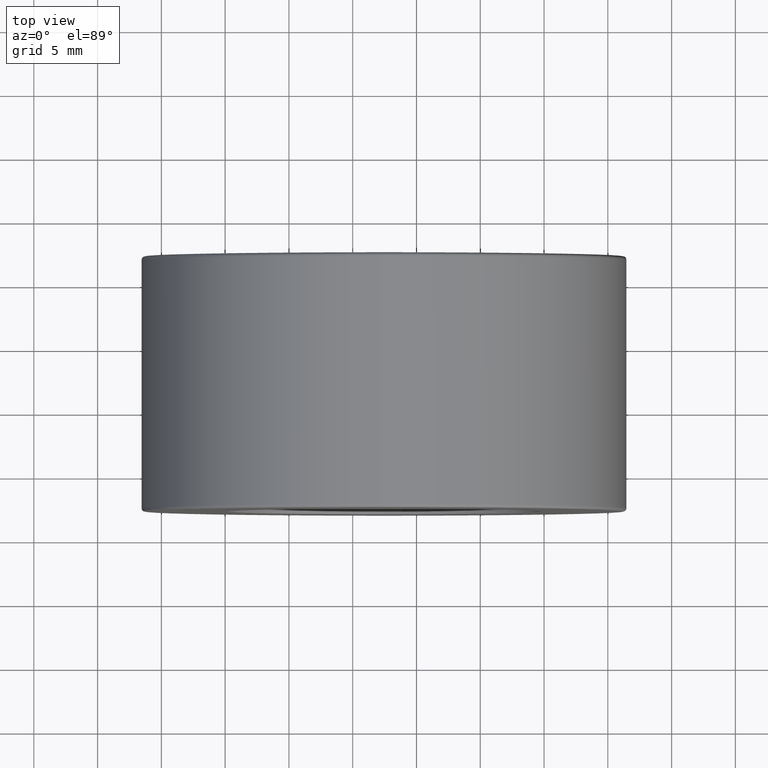
[diagram: clean part render]
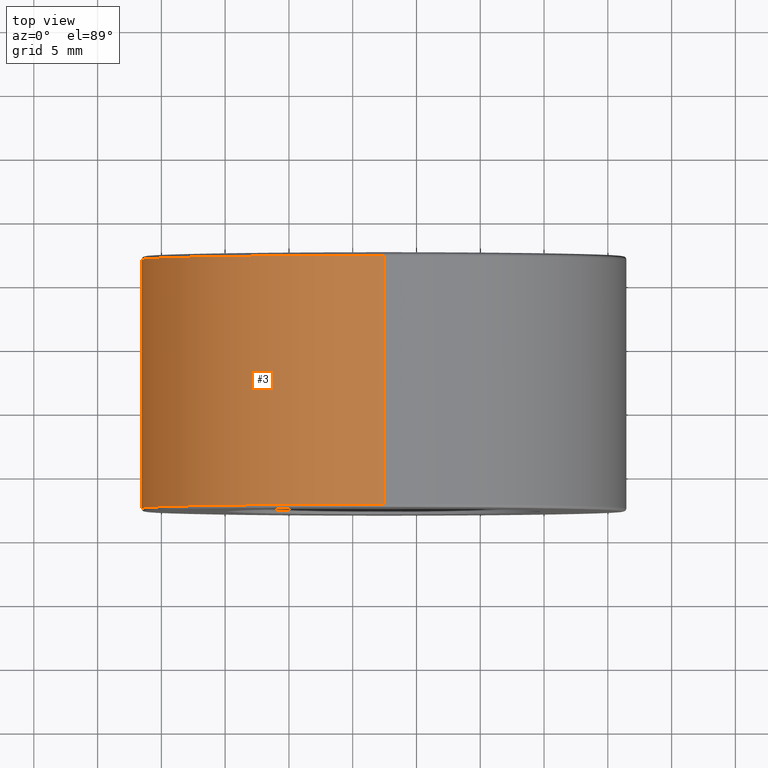
[diagram: same view with one face highlighted and labeled with its STEP entity id]
A machine part, top view. The second image highlights one B-rep face of the part: STEP entity #3.
In plain terms, the highlighted cylindrical surface (partial cylindrical patch) has radius 19 mm, axis along (-0, -1, -0).
Its self-contained STEP definition (entity closure, byte-faithful):
#3 = ADVANCED_FACE ( 'NONE', ( #58 ), #562, .T. ) ;
#15 = ORIENTED_EDGE ( 'NONE', *, *, #442, .T. ) ;
#35 = EDGE_LOOP ( 'NONE', ( #556, #131, #15, #324 ) ) ;
#38 = VERTEX_POINT ( 'NONE', #213 ) ;
#58 = FACE_OUTER_BOUND ( 'NONE', #35, .T. ) ;
#62 = AXIS2_PLACEMENT_3D ( 'NONE', #466, #515, #94 ) ;
#88 = CIRCLE ( 'NONE', #428, 18.99999999999999645 ) ;
#94 = DIRECTION ( 'NONE',  ( 0.000000000000000000, 0.000000000000000000, 1.000000000000000000 ) ) ;
#96 = CARTESIAN_POINT ( 'NONE',  ( -7.546808913101044958, 6.856404872697272168, 19.00000000000000000 ) ) ;
#127 = CARTESIAN_POINT ( 'NONE',  ( -7.546808913101045846, 7.106404872697272168, 56.99999999999999289 ) ) ;
#131 = ORIENTED_EDGE ( 'NONE', *, *, #342, .T. ) ;
#156 = CARTESIAN_POINT ( 'NONE',  ( -7.546808913101048510, -12.64359512730272783, 38.00000000000000000 ) ) ;
#174 = VERTEX_POINT ( 'NONE', #298 ) ;
#213 = CARTESIAN_POINT ( 'NONE',  ( -7.546808913101048510, -12.64359512730272783, 19.00000000000000000 ) ) ;
#222 = DIRECTION ( 'NONE',  ( -0.000000000000000000, -1.000000000000000000, -0.000000000000000000 ) ) ;
#247 = EDGE_CURVE ( 'NONE', #38, #494, #88, .T. ) ;
#283 = DIRECTION ( 'NONE',  ( -0.000000000000000000, -1.000000000000000000, -0.000000000000000000 ) ) ;
#298 = CARTESIAN_POINT ( 'NONE',  ( -7.546808913101048510, 6.856404872697272168, 56.99999999999999289 ) ) ;
#314 = CARTESIAN_POINT ( 'NONE',  ( -7.546808913101048510, 7.106404872697272168, 19.00000000000000000 ) ) ;
#318 = LINE ( 'NONE', #314, #490 ) ;
#323 = EDGE_CURVE ( 'NONE', #174, #494, #499, .T. ) ;
#324 = ORIENTED_EDGE ( 'NONE', *, *, #247, .T. ) ;
#327 = DIRECTION ( 'NONE',  ( -0.000000000000000000, -1.000000000000000000, -0.000000000000000000 ) ) ;
#335 = CARTESIAN_POINT ( 'NONE',  ( -7.546808913101045846, -12.64359512730272783, 56.99999999999999289 ) ) ;
#336 = DIRECTION ( 'NONE',  ( 0.000000000000000000, 0.000000000000000000, -1.000000000000000000 ) ) ;
#342 = EDGE_CURVE ( 'NONE', #174, #416, #535, .T. ) ;
#400 = VECTOR ( 'NONE', #222, 1000.000000000000000 ) ;
#416 = VERTEX_POINT ( 'NONE', #96 ) ;
#418 = AXIS2_PLACEMENT_3D ( 'NONE', #469, #327, #336 ) ;
#428 = AXIS2_PLACEMENT_3D ( 'NONE', #156, #436, #534 ) ;
#436 = DIRECTION ( 'NONE',  ( 0.000000000000000000, 1.000000000000000000, 0.000000000000000000 ) ) ;
#442 = EDGE_CURVE ( 'NONE', #416, #38, #318, .T. ) ;
#466 = CARTESIAN_POINT ( 'NONE',  ( -7.546808913101048510, 6.856404872697272168, 38.00000000000000000 ) ) ;
#469 = CARTESIAN_POINT ( 'NONE',  ( -7.546808913101048510, 7.106404872697272168, 38.00000000000000000 ) ) ;
#490 = VECTOR ( 'NONE', #283, 1000.000000000000000 ) ;
#494 = VERTEX_POINT ( 'NONE', #335 ) ;
#499 = LINE ( 'NONE', #127, #400 ) ;
#515 = DIRECTION ( 'NONE',  ( -0.000000000000000000, -1.000000000000000000, -0.000000000000000000 ) ) ;
#534 = DIRECTION ( 'NONE',  ( 0.000000000000000000, 0.000000000000000000, 1.000000000000000000 ) ) ;
#535 = CIRCLE ( 'NONE', #62, 18.99999999999999645 ) ;
#556 = ORIENTED_EDGE ( 'NONE', *, *, #323, .F. ) ;
#562 = CYLINDRICAL_SURFACE ( 'NONE', #418, 19.00000000000000000 ) ;